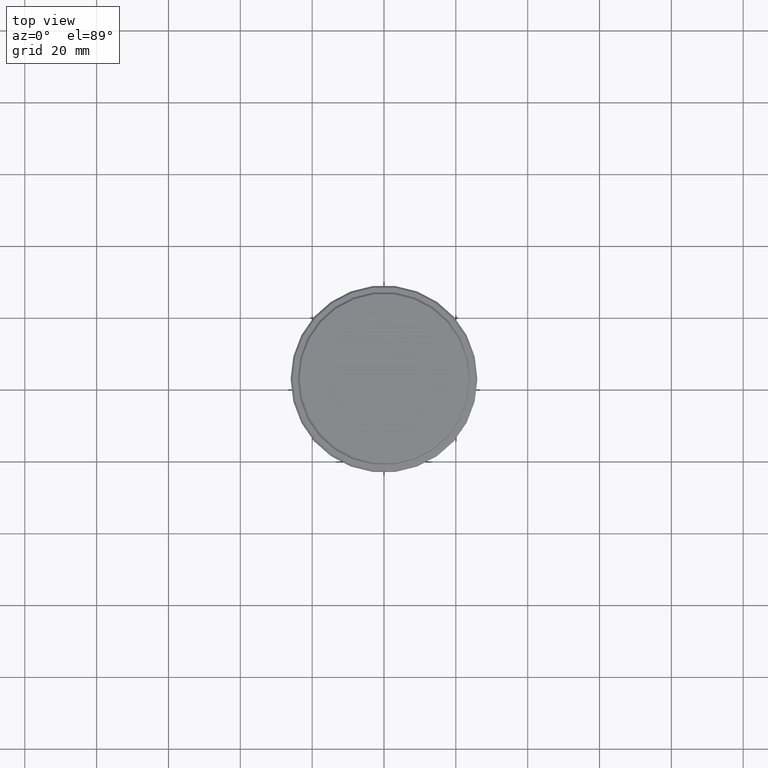
[diagram: clean part render]
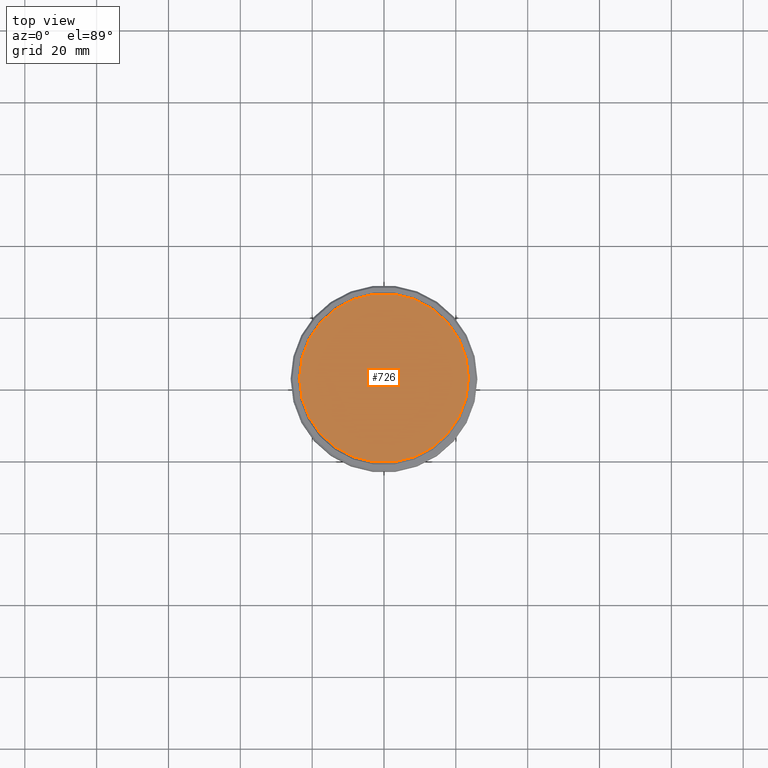
[diagram: same view with one face highlighted and labeled with its STEP entity id]
A machine part, top view. The second image highlights one B-rep face of the part: STEP entity #726.
In plain terms, the highlighted planar face has unit normal (0, -0, 1).
Its self-contained STEP definition (entity closure, byte-faithful):
#49 = CARTESIAN_POINT ( 'NONE',  ( -23.49999999999999289, 0.000000000000000000, 0.000000000000000000 ) ) ;
#59 = EDGE_CURVE ( 'NONE', #1064, #287, #1319, .T. ) ;
#120 = DIRECTION ( 'NONE',  ( -0.000000000000000000, -0.000000000000000000, 1.000000000000000000 ) ) ;
#135 = PLANE ( 'NONE',  #888 ) ;
#287 = VERTEX_POINT ( 'NONE', #1350 ) ;
#331 = DIRECTION ( 'NONE',  ( 1.000000000000000000, 0.000000000000000000, 0.000000000000000000 ) ) ;
#339 = DIRECTION ( 'NONE',  ( -0.000000000000000000, -0.000000000000000000, 1.000000000000000000 ) ) ;
#432 = DIRECTION ( 'NONE',  ( 1.000000000000000000, 0.000000000000000000, 0.000000000000000000 ) ) ;
#472 = DIRECTION ( 'NONE',  ( 0.000000000000000000, -0.000000000000000000, 1.000000000000000000 ) ) ;
#570 = EDGE_CURVE ( 'NONE', #287, #1064, #626, .T. ) ;
#582 = FACE_OUTER_BOUND ( 'NONE', #1124, .T. ) ;
#588 = DIRECTION ( 'NONE',  ( 1.000000000000000000, 0.000000000000000000, 0.000000000000000000 ) ) ;
#626 = CIRCLE ( 'NONE', #761, 23.49999999999999289 ) ;
#726 = ADVANCED_FACE ( 'NONE', ( #582 ), #135, .T. ) ;
#761 = AXIS2_PLACEMENT_3D ( 'NONE', #1069, #339, #331 ) ;
#796 = ORIENTED_EDGE ( 'NONE', *, *, #59, .T. ) ;
#797 = CARTESIAN_POINT ( 'NONE',  ( 0.000000000000000000, 0.000000000000000000, 0.000000000000000000 ) ) ;
#888 = AXIS2_PLACEMENT_3D ( 'NONE', #797, #472, #588 ) ;
#1022 = AXIS2_PLACEMENT_3D ( 'NONE', #1198, #120, #432 ) ;
#1060 = ORIENTED_EDGE ( 'NONE', *, *, #570, .T. ) ;
#1064 = VERTEX_POINT ( 'NONE', #49 ) ;
#1069 = CARTESIAN_POINT ( 'NONE',  ( 0.000000000000000000, 0.000000000000000000, 0.000000000000000000 ) ) ;
#1124 = EDGE_LOOP ( 'NONE', ( #796, #1060 ) ) ;
#1198 = CARTESIAN_POINT ( 'NONE',  ( 0.000000000000000000, 0.000000000000000000, 0.000000000000000000 ) ) ;
#1319 = CIRCLE ( 'NONE', #1022, 23.49999999999999289 ) ;
#1350 = CARTESIAN_POINT ( 'NONE',  ( 23.49999999999999289, 2.908536147974962924E-15, 0.000000000000000000 ) ) ;